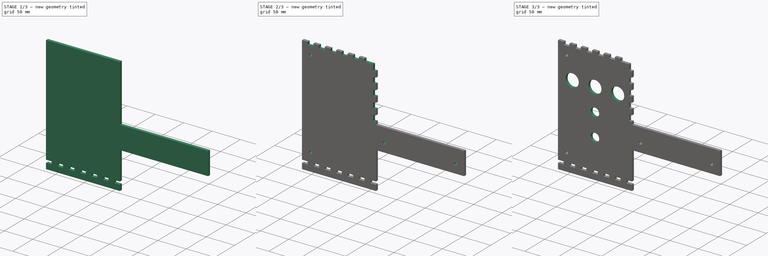
[diagram: build sequence overview — one tinted view per stage of 3, left to right]
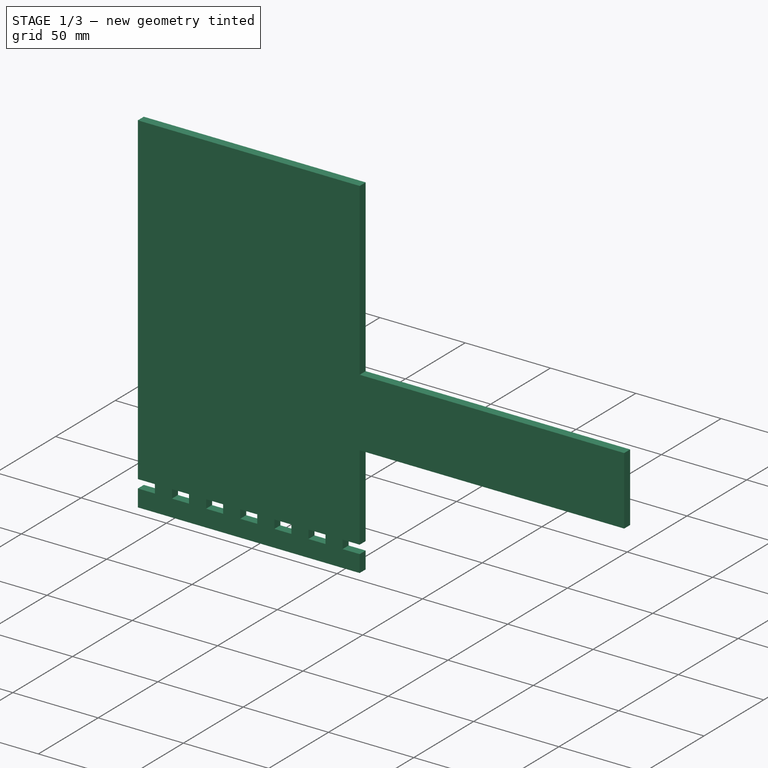
[diagram: stage 1 of 3 — iso view after this stage's code; geometry added in this stage tinted green]
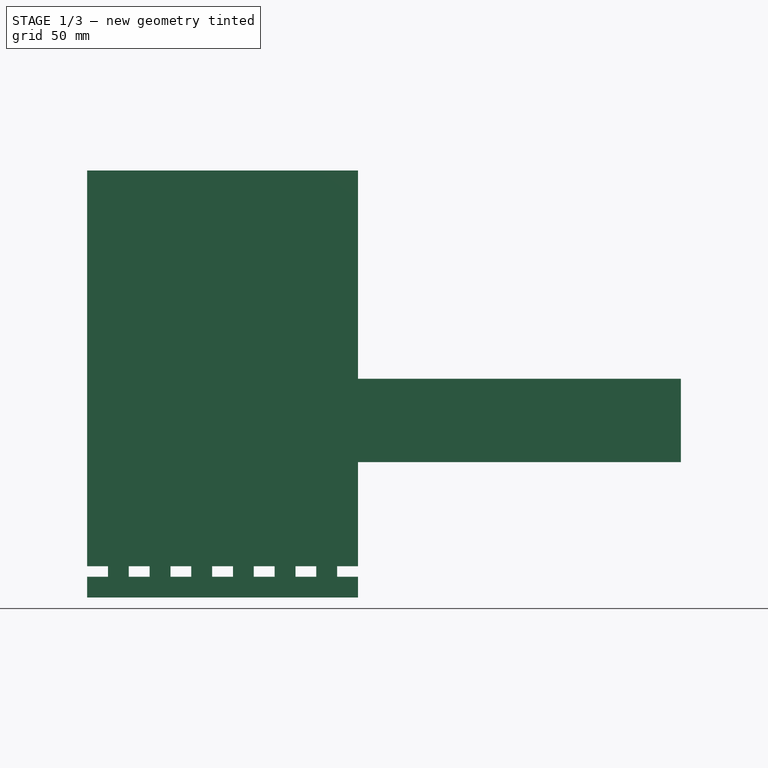
[diagram: stage 1 of 3 — front view after this stage's code; geometry added in this stage tinted green]
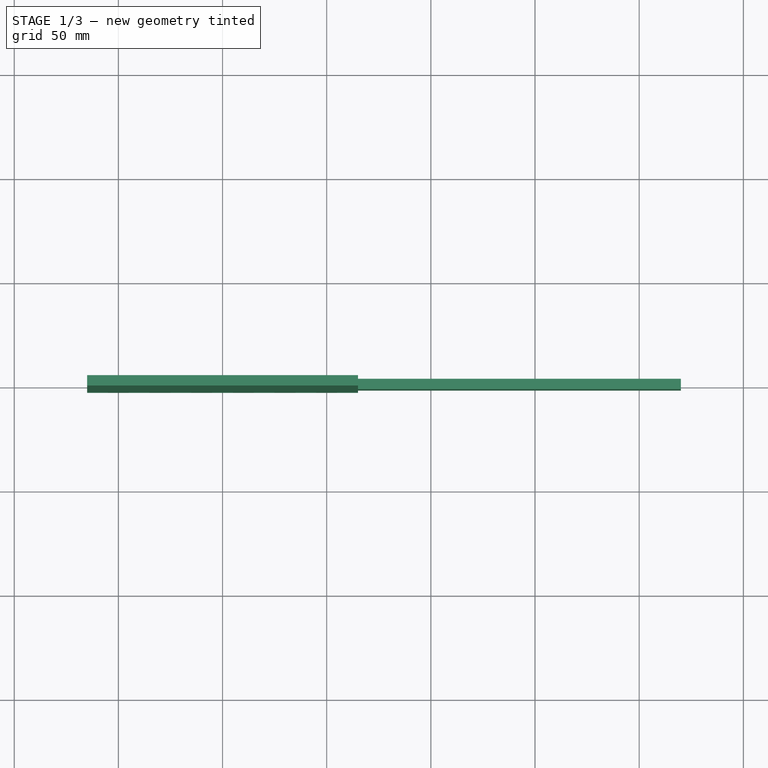
[diagram: stage 1 of 3 — top view after this stage's code; geometry added in this stage tinted green]
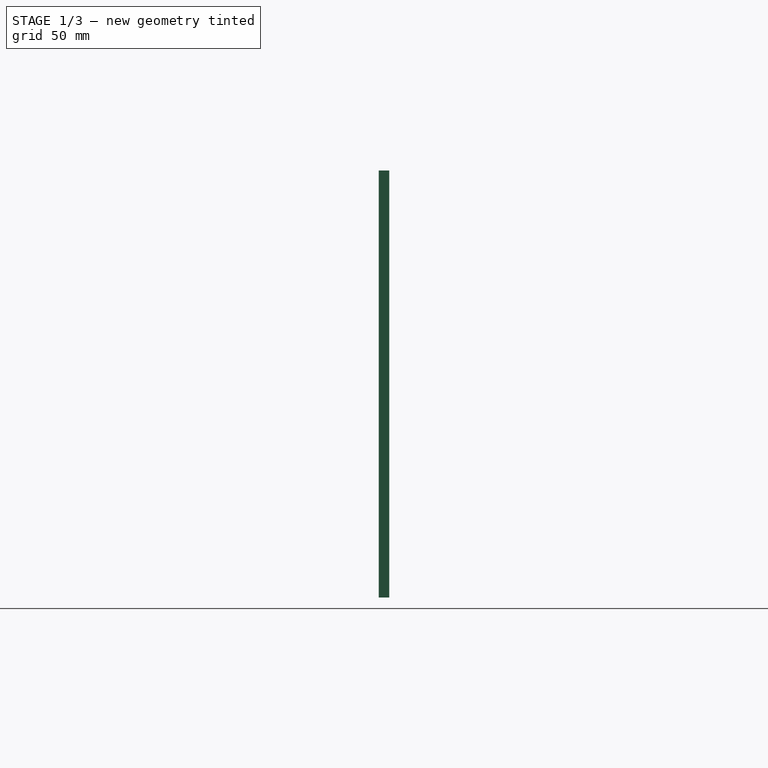
[diagram: stage 1 of 3 — right view after this stage's code; geometry added in this stage tinted green]
FCSTD DOCUMENT  (FreeCAD 0.19R24267 +148 (Git))
Label: FrontPlate
License: All rights reserved
LicenseURL: http://en.wikipedia.org/wiki/All_rights_reserved
objects: Sketcher::SketchObject×7, PartDesign::Pocket×6, PartDesign::Pad×1, PartDesign::Body×1
note: 22 computed .brp shape members not serialized (recipe doc carries the construction recipe); baked Part::Feature solids carry a one-line shape summary decoded from their .brp

FEATURE [Sketcher::SketchObject] Sketch
  FullyConstrained = true
  MapMode = 5
  Placement = pos=(0,0,0) rot=(1,0,0;1.5708rad)
  Support = -> [XZ_Plane]
  sketch-geometry (8):
    g0: LineSegment StartX=-65 StartY=102.5 StartZ=0 EndX=65 EndY=102.5 EndZ=0
    g1: LineSegment StartX=65 StartY=102.5 StartZ=0 EndX=65 EndY=2.5 EndZ=0
    g2: LineSegment StartX=65 StartY=-102.5 StartZ=0 EndX=-65 EndY=-102.5 EndZ=0
    g3: LineSegment StartX=-65 StartY=-102.5 StartZ=0 EndX=-65 EndY=102.5 EndZ=0
    g4: LineSegment StartX=65 StartY=2.5 StartZ=0 EndX=220 EndY=2.5 EndZ=0
    g5: LineSegment StartX=220 StartY=2.5 StartZ=0 EndX=220 EndY=-37.5 EndZ=0
    g6: LineSegment StartX=220 StartY=-37.5 StartZ=0 EndX=65 EndY=-37.5 EndZ=0
    g7: LineSegment StartX=65 StartY=-37.5 StartZ=0 EndX=65 EndY=-102.5 EndZ=0
  constraints (21):
    c: Coincident(g0,g1)
    c: Coincident(g7,g2)
    c: Coincident(g2,g3)
    c: Coincident(g3,g0)
    c: Horizontal(g2)
    c: Vertical(g3)
    c: Symmetric(g0,g0,g-2)
    c: Symmetric(g7,g0,g-1)
    c: Distance(g3) = 205
    c: Horizontal(g4)
    c: Coincident(g4,g5)
    c: Vertical(g5)
    c: Coincident(g5,g6)
    c: Horizontal(g6)
    c: Coincident(g1,g4)
    c: Coincident(g7,g6)
    c: Tangent(g1,g7)
    c: Distance(g0) = 130
    c: DistanceX(g0,g4) = 285
    c: DistanceY(g2,g5) = 65
    c: Distance(g5) = 40
FEATURE [PartDesign::Pad] Pad
  Direction = (1,1,1)
  Length = 5
  Length2 = 100
  Midplane = true
  Placement = pos=(0,0,0) rot=(1,0,0;1.5708rad)
  Profile = -> Sketch
  Refine = true
  Type = 0
FEATURE [Sketcher::SketchObject] Sketch001
  ExternalGeometry = -> [Pad]
  FullyConstrained = true
  MapMode = 5
  Placement = pos=(0,-2.5,-6e-16) rot=(1,0,0;1.5708rad)
  Support = -> [Pad]
  sketch-geometry (34):
    g0: LineSegment StartX=-65 StartY=-92.5 StartZ=0 EndX=-55 EndY=-92.5 EndZ=0
    g1: LineSegment StartX=-55 StartY=-92.5 StartZ=0 EndX=-55 EndY=-87.5 EndZ=0
    g2: LineSegment StartX=-55 StartY=-87.5 StartZ=0 EndX=-65 EndY=-87.5 EndZ=0
    g3: LineSegment StartX=-65 StartY=-87.5 StartZ=0 EndX=-65 EndY=-92.5 EndZ=0
    g4: LineSegment StartX=-45 StartY=-92.5 StartZ=0 EndX=-35 EndY=-92.5 EndZ=0
    g5: LineSegment StartX=-35 StartY=-92.5 StartZ=0 EndX=-35 EndY=-87.5 EndZ=0
    g6: LineSegment StartX=-35 StartY=-87.5 StartZ=0 EndX=-45 EndY=-87.5 EndZ=0
    g7: LineSegment StartX=-45 StartY=-87.5 StartZ=0 EndX=-45 EndY=-92.5 EndZ=0
    g8: LineSegment StartX=-65 StartY=-92.5 StartZ=0 EndX=-45 EndY=-92.5 EndZ=0
    g9: LineSegment StartX=-25 StartY=-92.5 StartZ=0 EndX=-15 EndY=-92.5 EndZ=0
    g10: LineSegment StartX=-15 StartY=-92.5 StartZ=0 EndX=-15 EndY=-87.5 EndZ=0
    g11: LineSegment StartX=-15 StartY=-87.5 StartZ=0 EndX=-25 EndY=-87.5 EndZ=0
    g12: LineSegment StartX=-25 StartY=-87.5 StartZ=0 EndX=-25 EndY=-92.5 EndZ=0
    g13: LineSegment StartX=-45 StartY=-92.5 StartZ=0 EndX=-25 EndY=-92.5 EndZ=0
    g14: LineSegment StartX=-5 StartY=-92.5 StartZ=0 EndX=5 EndY=-92.5 EndZ=0
    g15: LineSegment StartX=5 StartY=-92.5 StartZ=0 EndX=5 EndY=-87.5 EndZ=0
    g16: LineSegment StartX=5 StartY=-87.5 StartZ=0 EndX=-5 EndY=-87.5 EndZ=0
    g17: LineSegment StartX=-5 StartY=-87.5 StartZ=0 EndX=-5 EndY=-92.5 EndZ=0
    g18: LineSegment StartX=-25 StartY=-92.5 StartZ=0 EndX=-5 EndY=-92.5 EndZ=0
    g19: LineSegment StartX=15 StartY=-92.5 StartZ=0 EndX=25 EndY=-92.5 EndZ=0
    g20: LineSegment StartX=25 StartY=-92.5 StartZ=0 EndX=25 EndY=-87.5 EndZ=0
    g21: LineSegment StartX=25 StartY=-87.5 StartZ=0 EndX=15 EndY=-87.5 EndZ=0
    g22: LineSegment StartX=15 StartY=-87.5 StartZ=0 EndX=15 EndY=-92.5 EndZ=0
    g23: LineSegment StartX=-5 StartY=-92.5 StartZ=0 EndX=15 EndY=-92.5 EndZ=0
    g24: LineSegment StartX=35 StartY=-92.5 StartZ=0 EndX=45 EndY=-92.5 EndZ=0
    g25: LineSegment StartX=45 StartY=-92.5 StartZ=0 EndX=45 EndY=-87.5 EndZ=0
    g26: LineSegment StartX=45 StartY=-87.5 StartZ=0 EndX=35 EndY=-87.5 EndZ=0
    g27: LineSegment StartX=35 StartY=-87.5 StartZ=0 EndX=35 EndY=-92.5 EndZ=0
    g28: LineSegment StartX=15 StartY=-92.5 StartZ=0 EndX=35 EndY=-92.5 EndZ=0
    g29: LineSegment StartX=55 StartY=-92.5 StartZ=0 EndX=65 EndY=-92.5 EndZ=0
    g30: LineSegment StartX=65 StartY=-92.5 StartZ=0 EndX=65 EndY=-87.5 EndZ=0
    g31: LineSegment StartX=65 StartY=-87.5 StartZ=0 EndX=55 EndY=-87.5 EndZ=0
    g32: LineSegment StartX=55 StartY=-87.5 StartZ=0 EndX=55 EndY=-92.5 EndZ=0
    g33: LineSegment StartX=35 StartY=-92.5 StartZ=0 EndX=55 EndY=-92.5 EndZ=0
  constraints (96):
    c: Coincident(g0,g1)
    c: Coincident(g1,g2)
    c: Coincident(g2,g3)
    c: Coincident(g3,g0)
    c: Horizontal(g0)
    c: Horizontal(g2)
    c: Vertical(g1)
    c: Vertical(g3)
    c: PointOnObject(g0,g-3)
    c: Distance(g1) = 5
    c: Distance(g2) = 10
    c: DistanceY(g-3,g0) = 10
    c: Coincident(g4,g5)
    c: Coincident(g5,g6)
    c: Coincident(g6,g7)
    c: Coincident(g7,g4)
    c: Horizontal(g4)
    c: Horizontal(g6)
    c: Vertical(g5)
    c: Vertical(g7)
    c: Equal(g1,g5) = 5
    c: Equal(g2,g6) = 10
    c: Coincident(g0,g8)
    c: Coincident(g4,g8)
    c: Distance(g8) = 20
    c: Coincident(g9,g10)
    c: Coincident(g10,g11)
    c: Coincident(g11,g12)
    c: Coincident(g12,g9)
    c: Horizontal(g9)
    c: Horizontal(g11)
    c: Vertical(g10)
    c: Vertical(g12)
    c: Equal(g1,g10) = 5
    c: Equal(g2,g11) = 10
    c: Coincident(g4,g13)
    c: Coincident(g9,g13)
    c: Equal(g8,g13)
    c: Parallel(g13,g8)
    c: Coincident(g14,g15)
    c: Coincident(g15,g16)
    c: Coincident(g16,g17)
    c: Coincident(g17,g14)
    c: Horizontal(g14)
    c: Horizontal(g16)
    c: Vertical(g15)
    c: Vertical(g17)
    c: Equal(g1,g15) = 5
    c: Equal(g2,g16) = 10
    c: Coincident(g9,g18)
    c: Coincident(g14,g18)
    c: Equal(g8,g18)
    c: Parallel(g18,g8)
    c: Coincident(g19,g20)
    c: Coincident(g20,g21)
    c: Coincident(g21,g22)
    c: Coincident(g22,g19)
    c: Horizontal(g19)
    c: Horizontal(g21)
    c: Vertical(g20)
    c: Vertical(g22)
    c: Equal(g1,g20) = 5
    c: Equal(g2,g21) = 10
    c: Coincident(g14,g23)
    c: Coincident(g19,g23)
    c: Equal(g8,g23)
    c: Parallel(g23,g8)
    c: Coincident(g24,g25)
    c: Coincident(g25,g26)
    c: Coincident(g26,g27)
    c: Coincident(g27,g24)
    c: Horizontal(g24)
    c: Horizontal(g26)
    c: Vertical(g25)
    c: Vertical(g27)
    c: Equal(g1,g25) = 5
    c: Equal(g2,g26) = 10
    c: Coincident(g19,g28)
    c: Coincident(g24,g28)
    c: Equal(g8,g28)
    c: Parallel(g28,g8)
    c: Coincident(g29,g30)
    c: Coincident(g30,g31)
    c: Coincident(g31,g32)
    c: Coincident(g32,g29)
    c: Horizontal(g29)
    c: Horizontal(g31)
    c: Vertical(g30)
    c: Vertical(g32)
    c: Equal(g1,g30) = 5
    c: Equal(g2,g31) = 10
    c: Coincident(g24,g33)
    c: Coincident(g29,g33)
    c: Equal(g8,g33)
    c: Parallel(g33,g8)
    c: Horizontal(g8)
FEATURE [PartDesign::Pocket] Pocket  label="BottomCrenel"
  BaseFeature = -> Pad
  Length = 5
  Length2 = 100
  Placement = pos=(0,0,0) rot=(1,0,0;1.5708rad)
  Profile = -> Sketch001
  Refine = true
  Type = 1
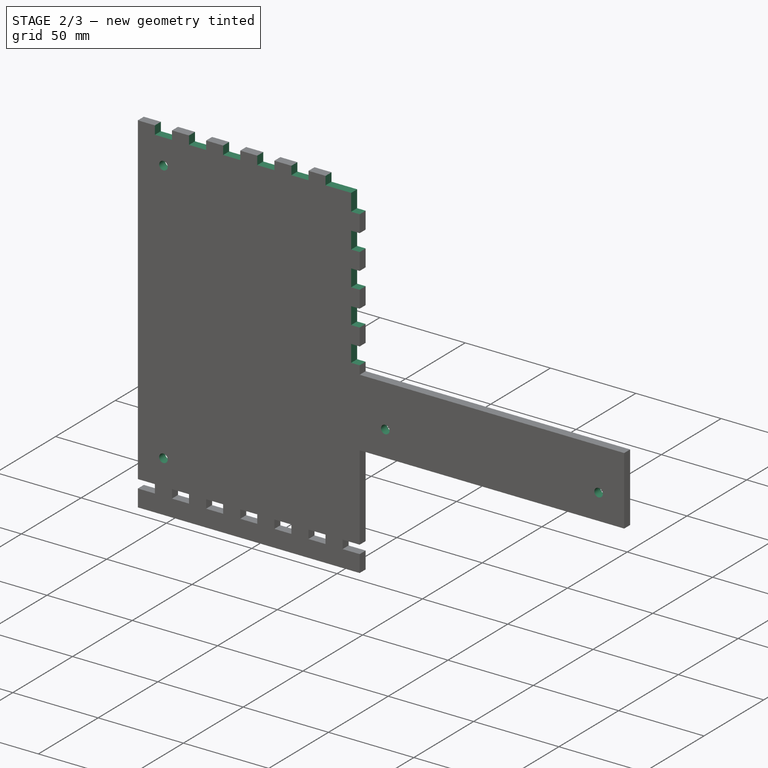
[diagram: stage 2 of 3 — iso view after this stage's code; geometry added in this stage tinted green]
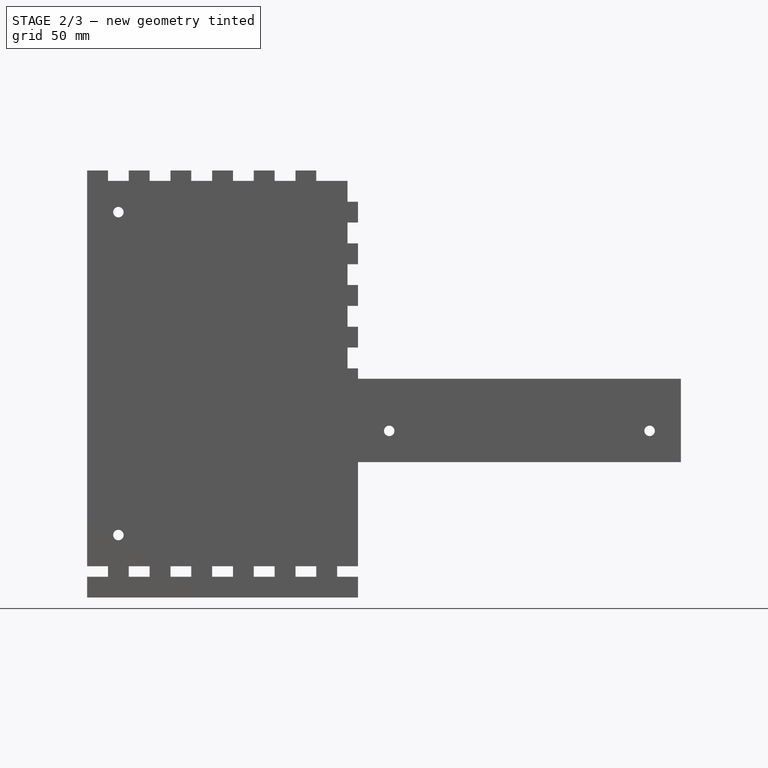
[diagram: stage 2 of 3 — front view after this stage's code; geometry added in this stage tinted green]
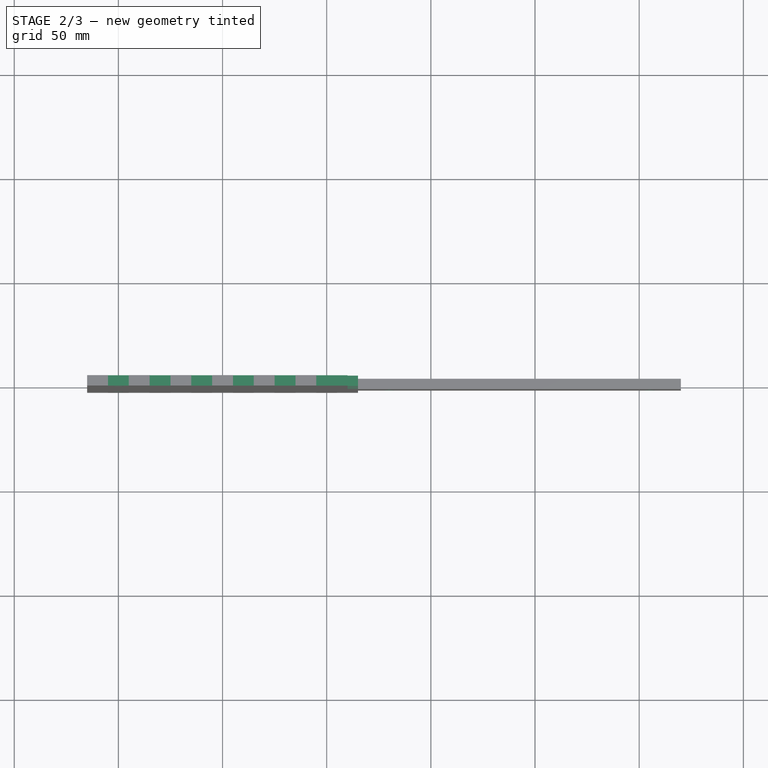
[diagram: stage 2 of 3 — top view after this stage's code; geometry added in this stage tinted green]
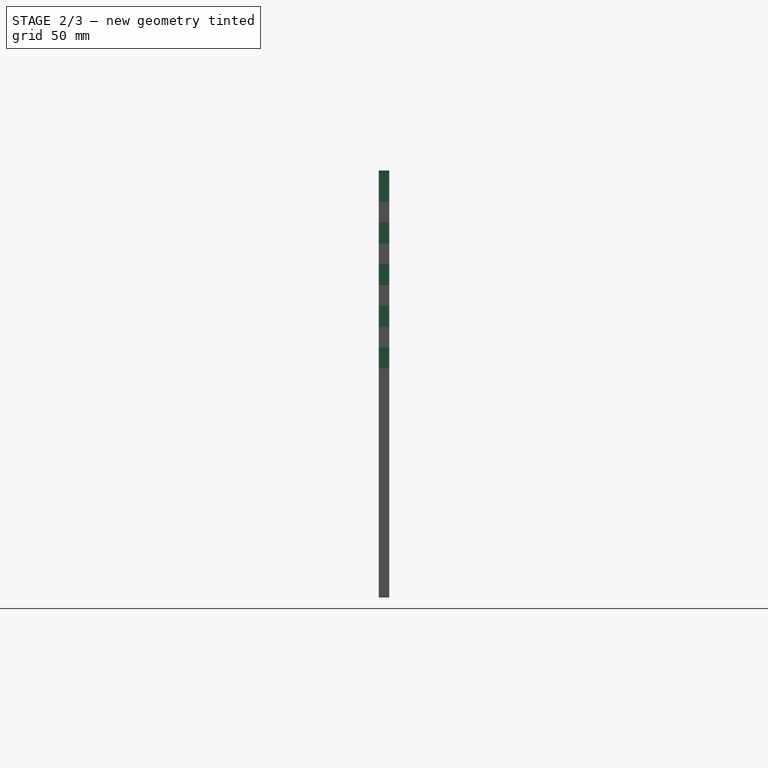
[diagram: stage 2 of 3 — right view after this stage's code; geometry added in this stage tinted green]
FEATURE [Sketcher::SketchObject] Sketch002
  ExternalGeometry = -> [Pocket]
  FullyConstrained = true
  MapMode = 5
  Placement = pos=(0,-2.5,-6e-16) rot=(1,0,0;1.5708rad)
  Support = -> [Pocket]
  sketch-geometry (4):
    g0: Circle CenterX=-50 CenterY=82.5 CenterZ=0 NormalX=0 NormalY=0 NormalZ=1 AngleXU=0 Radius=2.5
    g1: Circle CenterX=-50 CenterY=-72.5 CenterZ=0 NormalX=0 NormalY=0 NormalZ=1 AngleXU=0 Radius=2.5
    g2: Circle CenterX=80 CenterY=-22.5 CenterZ=0 NormalX=0 NormalY=0 NormalZ=1 AngleXU=0 Radius=2.5
    g3: Circle CenterX=205 CenterY=-22.5 CenterZ=0 NormalX=0 NormalY=0 NormalZ=1 AngleXU=0 Radius=2.5
  constraints (12):
    c: Vertical(g1,g0)
    c: Diameter(g1) = 5
    c: DistanceY(g-4,g1) = 15
    c: DistanceX(g-3,g0) = 15
    c: DistanceY(g0,g-3) = 20
    c: Horizontal(g2,g3)
    c: Equal(g0,g1)
    c: Equal(g1,g2)
    c: Equal(g2,g3)
    c: DistanceX(g-5,g2) = 15
    c: DistanceX(g3,g-6) = 15
    c: DistanceY(g-6,g3) = 15
FEATURE [PartDesign::Pocket] Pocket001  label="HolesForTry_Square"
  BaseFeature = -> Pocket
  Length = 5
  Length2 = 100
  Placement = pos=(0,0,0) rot=(1,0,0;1.5708rad)
  Profile = -> Sketch002
  Refine = true
  Type = 1
FEATURE [Sketcher::SketchObject] Sketch003
  ExternalGeometry = -> [Pocket001]
  FullyConstrained = true
  MapMode = 5
  Placement = pos=(0,-2.5,-6e-16) rot=(1,0,0;1.5708rad)
  Support = -> [Pocket001]
  sketch-geometry (29):
    g0: LineSegment StartX=-55 StartY=97.5 StartZ=0 EndX=-45 EndY=97.5 EndZ=0
    g1: LineSegment StartX=-45 StartY=97.5 StartZ=0 EndX=-45 EndY=102.5 EndZ=0
    g2: LineSegment StartX=-45 StartY=102.5 StartZ=0 EndX=-55 EndY=102.5 EndZ=0
    g3: LineSegment StartX=-55 StartY=102.5 StartZ=0 EndX=-55 EndY=97.5 EndZ=0
    g4: LineSegment StartX=-35 StartY=97.5 StartZ=0 EndX=-25 EndY=97.5 EndZ=0
    g5: LineSegment StartX=-25 StartY=97.5 StartZ=0 EndX=-25 EndY=102.5 EndZ=0
    g6: LineSegment StartX=-25 StartY=102.5 StartZ=0 EndX=-35 EndY=102.5 EndZ=0
    g7: LineSegment StartX=-35 StartY=102.5 StartZ=0 EndX=-35 EndY=97.5 EndZ=0
    g8: LineSegment StartX=-55 StartY=97.5 StartZ=0 EndX=-35 EndY=97.5 EndZ=0
    g9: LineSegment StartX=-15 StartY=97.5 StartZ=0 EndX=-5 EndY=97.5 EndZ=0
    g10: LineSegment StartX=-5 StartY=97.5 StartZ=0 EndX=-5 EndY=102.5 EndZ=0
    g11: LineSegment StartX=-5 StartY=102.5 StartZ=0 EndX=-15 EndY=102.5 EndZ=0
    g12: LineSegment StartX=-15 StartY=102.5 StartZ=0 EndX=-15 EndY=97.5 EndZ=0
    g13: LineSegment StartX=-35 StartY=97.5 StartZ=0 EndX=-15 EndY=97.5 EndZ=0
    g14: LineSegment StartX=5 StartY=97.5 StartZ=0 EndX=15 EndY=97.5 EndZ=0
    g15: LineSegment StartX=15 StartY=97.5 StartZ=0 EndX=15 EndY=102.5 EndZ=0
    g16: LineSegment StartX=15 StartY=102.5 StartZ=0 EndX=5 EndY=102.5 EndZ=0
    g17: LineSegment StartX=5 StartY=102.5 StartZ=0 EndX=5 EndY=97.5 EndZ=0
    g18: LineSegment StartX=-15 StartY=97.5 StartZ=0 EndX=5 EndY=97.5 EndZ=0
    g19: LineSegment StartX=25 StartY=97.5 StartZ=0 EndX=35 EndY=97.5 EndZ=0
    g20: LineSegment StartX=35 StartY=97.5 StartZ=0 EndX=35 EndY=102.5 EndZ=0
    g21: LineSegment StartX=35 StartY=102.5 StartZ=0 EndX=25 EndY=102.5 EndZ=0
    g22: LineSegment StartX=25 StartY=102.5 StartZ=0 EndX=25 EndY=97.5 EndZ=0
    g23: LineSegment StartX=5 StartY=97.5 StartZ=0 EndX=25 EndY=97.5 EndZ=0
    g24: LineSegment StartX=45 StartY=102.5 StartZ=0 EndX=45 EndY=97.5 EndZ=0
    g25: LineSegment StartX=25 StartY=97.5 StartZ=0 EndX=45 EndY=97.5 EndZ=0
    g26: LineSegment StartX=45 StartY=97.5 StartZ=0 EndX=65 EndY=97.5 EndZ=0
    g27: LineSegment StartX=65 StartY=102.5 StartZ=0 EndX=65 EndY=97.5 EndZ=0
    g28: LineSegment StartX=45 StartY=102.5 StartZ=0 EndX=65 EndY=102.5 EndZ=0
  constraints (81):
    c: Coincident(g0,g1)
    c: Coincident(g1,g2)
    c: Coincident(g2,g3)
    c: Coincident(g3,g0)
    c: Horizontal(g0)
    c: Horizontal(g2)
    c: Vertical(g1)
    c: Vertical(g3)
    c: Distance(g0) = 10
    c: Distance(g1) = 5
    c: PointOnObject(g2,g-3)
    c: Distance(g2,g-3) = 10
    c: Coincident(g4,g5)
    c: Coincident(g5,g6)
    c: Coincident(g6,g7)
    c: Coincident(g7,g4)
    c: Horizontal(g4)
    c: Horizontal(g6)
    c: Vertical(g5)
    c: Vertical(g7)
    c: Equal(g0,g4) = 10
    c: Equal(g1,g5) = 5
    c: Coincident(g0,g8)
    c: Coincident(g4,g8)
    c: Distance(g8) = 20
    c: Coincident(g9,g10)
    c: Coincident(g10,g11)
    c: Coincident(g11,g12)
    c: Coincident(g12,g9)
    c: Horizontal(g9)
    c: Horizontal(g11)
    c: Vertical(g10)
    c: Vertical(g12)
    c: Equal(g0,g9) = 10
    c: Equal(g1,g10) = 5
    c: Coincident(g4,g13)
    c: Coincident(g9,g13)
    c: Equal(g8,g13)
    c: Parallel(g13,g8)
    c: Coincident(g14,g15)
    c: Coincident(g15,g16)
    c: Coincident(g16,g17)
    c: Coincident(g17,g14)
    c: Horizontal(g14)
    c: Horizontal(g16)
    c: Vertical(g15)
    c: Vertical(g17)
    c: Equal(g0,g14) = 10
    c: Equal(g1,g15) = 5
    c: Coincident(g9,g18)
    c: Coincident(g14,g18)
    c: Equal(g8,g18)
    c: Parallel(g18,g8)
    c: Coincident(g19,g20)
    c: Coincident(g20,g21)
    c: Coincident(g21,g22)
    c: Coincident(g22,g19)
    c: Horizontal(g19)
    c: Horizontal(g21)
    c: Vertical(g20)
    c: Vertical(g22)
    c: Equal(g0,g19) = 10
    c: Equal(g1,g20) = 5
    c: Coincident(g14,g23)
    c: Coincident(g19,g23)
    c: Equal(g8,g23)
    c: Parallel(g23,g8)
    c: Vertical(g24)
    c: Coincident(g19,g25)
    c: Equal(g8,g25)
    c: Parallel(g25,g8)
    c: Horizontal(g8)
    c: Coincident(g26,g24)
    c: Horizontal(g26)
    c: Coincident(g27,g-3)
    c: Coincident(g27,g26)
    c: Vertical(g27)
    c: Coincident(g28,g24)
    c: Coincident(g28,g27)
    c: Horizontal(g28)
    c: Coincident(g24,g25)
FEATURE [PartDesign::Pocket] Pocket002  label="UpperCrenel"
  BaseFeature = -> Pocket001
  Length = 5
  Length2 = 100
  Placement = pos=(0,0,0) rot=(1,0,0;1.5708rad)
  Profile = -> Sketch003
  Refine = true
  Type = 1
FEATURE [Sketcher::SketchObject] Sketch004
  ExternalGeometry = -> [Pocket002]
  FullyConstrained = true
  MapMode = 5
  Placement = pos=(0,-2.5,-6e-16) rot=(1,0,0;1.5708rad)
  Support = -> [Pocket002]
  sketch-geometry (24):
    g0: LineSegment StartX=60 StartY=87.5 StartZ=0 EndX=65 EndY=87.5 EndZ=0
    g1: LineSegment StartX=65 StartY=87.5 StartZ=0 EndX=65 EndY=97.5 EndZ=0
    g2: LineSegment StartX=65 StartY=97.5 StartZ=0 EndX=60 EndY=97.5 EndZ=0
    g3: LineSegment StartX=60 StartY=97.5 StartZ=0 EndX=60 EndY=87.5 EndZ=0
    g4: LineSegment StartX=60 StartY=67.5 StartZ=0 EndX=65 EndY=67.5 EndZ=0
    g5: LineSegment StartX=65 StartY=67.5 StartZ=0 EndX=65 EndY=77.5 EndZ=0
    g6: LineSegment StartX=65 StartY=77.5 StartZ=0 EndX=60 EndY=77.5 EndZ=0
    g7: LineSegment StartX=60 StartY=77.5 StartZ=0 EndX=60 EndY=67.5 EndZ=0
    g8: LineSegment StartX=60 StartY=87.5 StartZ=0 EndX=60 EndY=67.5 EndZ=0
    g9: LineSegment StartX=60 StartY=47.5 StartZ=0 EndX=65 EndY=47.5 EndZ=0
    g10: LineSegment StartX=65 StartY=47.5 StartZ=0 EndX=65 EndY=57.5 EndZ=0
    g11: LineSegment StartX=65 StartY=57.5 StartZ=0 EndX=60 EndY=57.5 EndZ=0
    g12: LineSegment StartX=60 StartY=57.5 StartZ=0 EndX=60 EndY=47.5 EndZ=0
    g13: LineSegment StartX=60 StartY=67.5 StartZ=0 EndX=60 EndY=47.5 EndZ=0
    g14: LineSegment StartX=60 StartY=27.5 StartZ=0 EndX=65 EndY=27.5 EndZ=0
    g15: LineSegment StartX=65 StartY=27.5 StartZ=0 EndX=65 EndY=37.5 EndZ=0
    g16: LineSegment StartX=65 StartY=37.5 StartZ=0 EndX=60 EndY=37.5 EndZ=0
    g17: LineSegment StartX=60 StartY=37.5 StartZ=0 EndX=60 EndY=27.5 EndZ=0
    g18: LineSegment StartX=60 StartY=47.5 StartZ=0 EndX=60 EndY=27.5 EndZ=0
    g19: LineSegment StartX=60 StartY=7.5 StartZ=0 EndX=65 EndY=7.5 EndZ=0
    g20: LineSegment StartX=65 StartY=7.5 StartZ=0 EndX=65 EndY=17.5 EndZ=0
    g21: LineSegment StartX=65 StartY=17.5 StartZ=0 EndX=60 EndY=17.5 EndZ=0
    g22: LineSegment StartX=60 StartY=17.5 StartZ=0 EndX=60 EndY=7.5 EndZ=0
    g23: LineSegment StartX=60 StartY=27.5 StartZ=0 EndX=60 EndY=7.5 EndZ=0
  constraints (67):
    c: Coincident(g0,g1)
    c: Coincident(g1,g2)
    c: Coincident(g2,g3)
    c: Coincident(g3,g0)
    c: Horizontal(g0)
    c: Horizontal(g2)
    c: Vertical(g1)
    c: Vertical(g3)
    c: Coincident(g1,g-3)
    c: Distance(g1) = 10
    c: Distance(g2) = 5
    c: Coincident(g4,g5)
    c: Coincident(g5,g6)
    c: Coincident(g6,g7)
    c: Coincident(g7,g4)
    c: Horizontal(g4)
    c: Horizontal(g6)
    c: Vertical(g5)
    c: Vertical(g7)
    c: Equal(g1,g5) = 10
    c: Equal(g2,g6) = 5
    c: Coincident(g0,g8)
    c: Coincident(g4,g8)
    c: Distance(g8) = 20
    c: Coincident(g9,g10)
    c: Coincident(g10,g11)
    c: Coincident(g11,g12)
    c: Coincident(g12,g9)
    c: Horizontal(g9)
    c: Horizontal(g11)
    c: Vertical(g10)
    c: Vertical(g12)
    c: Equal(g1,g10) = 10
    c: Equal(g2,g11) = 5
    c: Coincident(g4,g13)
    c: Coincident(g9,g13)
    c: Equal(g8,g13)
    c: Parallel(g13,g8)
    c: Coincident(g14,g15)
    c: Coincident(g15,g16)
    c: Coincident(g16,g17)
    c: Coincident(g17,g14)
    c: Horizontal(g14)
    c: Horizontal(g16)
    c: Vertical(g15)
    c: Vertical(g17)
    c: Equal(g1,g15) = 10
    c: Equal(g2,g16) = 5
    c: Coincident(g9,g18)
    c: Coincident(g14,g18)
    c: Equal(g8,g18)
    c: Parallel(g18,g8)
    c: Coincident(g19,g20)
    c: Coincident(g20,g21)
    c: Coincident(g21,g22)
    c: Coincident(g22,g19)
    c: Horizontal(g19)
    c: Horizontal(g21)
    c: Vertical(g20)
    c: Vertical(g22)
    c: Equal(g1,g20) = 10
    c: Equal(g2,g21) = 5
    c: Coincident(g14,g23)
    c: Coincident(g19,g23)
    c: Equal(g8,g23)
    c: Parallel(g23,g8)
    c: Vertical(g8)
FEATURE [PartDesign::Pocket] Pocket003  label="InnerCrenel"
  BaseFeature = -> Pocket002
  Length = 5
  Length2 = 100
  Placement = pos=(0,0,0) rot=(1,0,0;1.5708rad)
  Profile = -> Sketch004
  Refine = true
  Type = 1
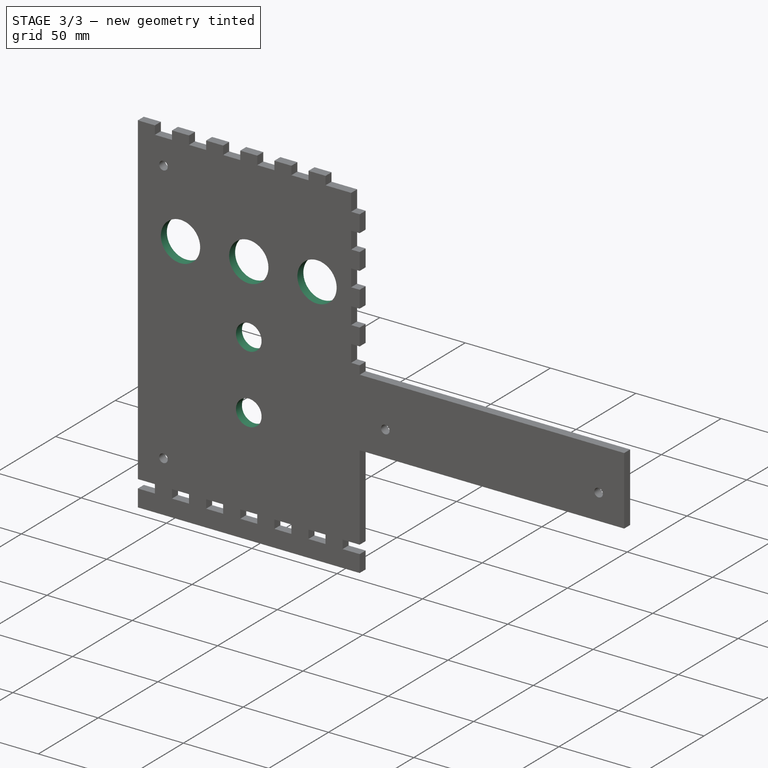
[diagram: stage 3 of 3 — iso view after this stage's code; geometry added in this stage tinted green]
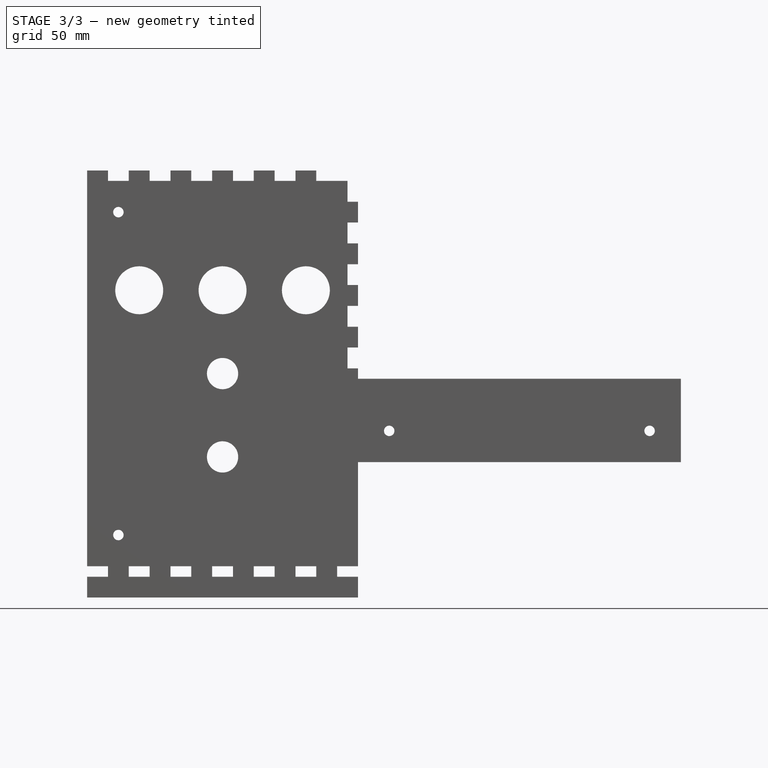
[diagram: stage 3 of 3 — front view after this stage's code; geometry added in this stage tinted green]
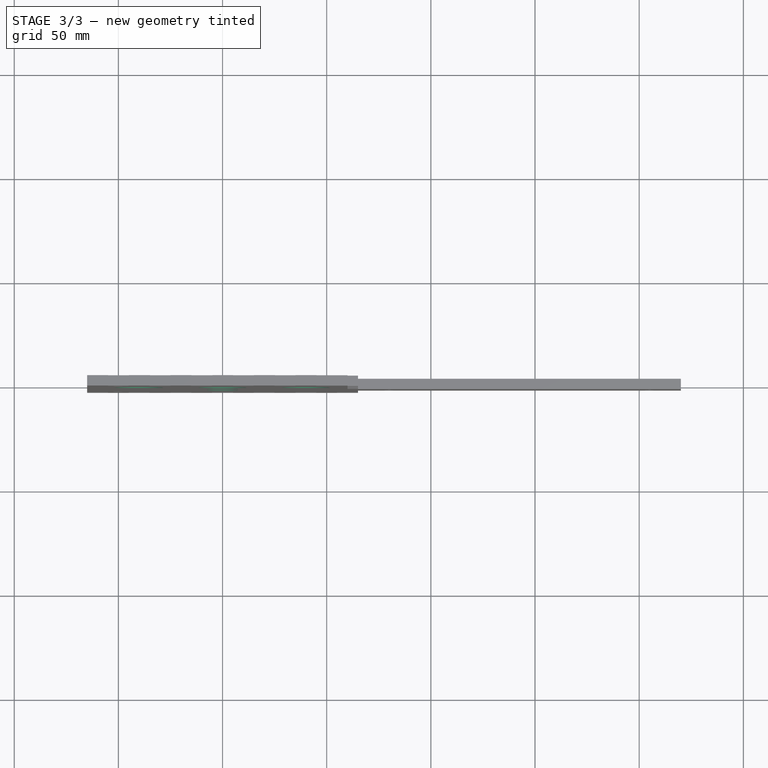
[diagram: stage 3 of 3 — top view after this stage's code; geometry added in this stage tinted green]
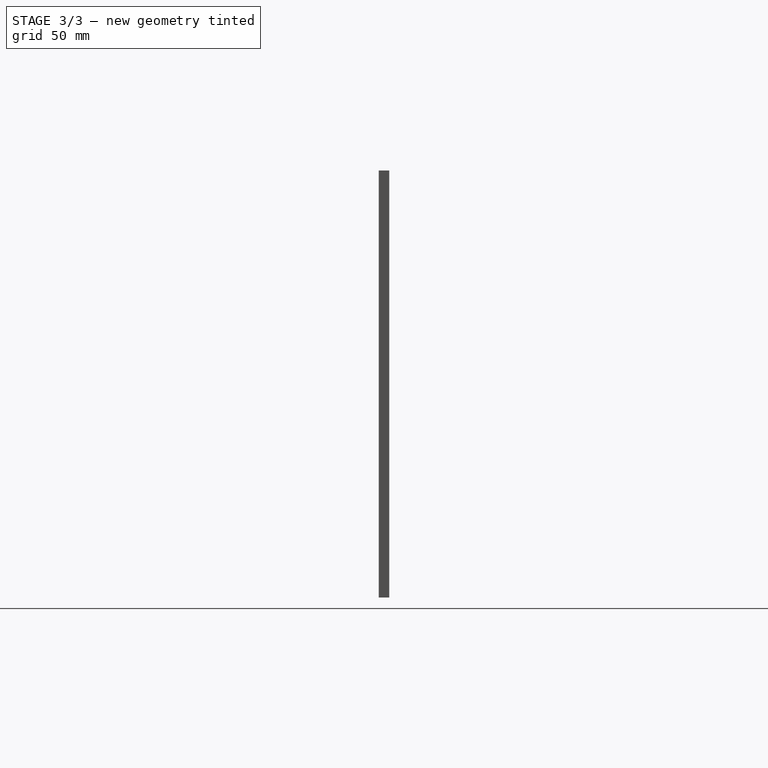
[diagram: stage 3 of 3 — right view after this stage's code; geometry added in this stage tinted green]
FEATURE [Sketcher::SketchObject] Sketch005
  FullyConstrained = true
  MapMode = 5
  Placement = pos=(0,-2.5,-6e-16) rot=(1,0,0;1.5708rad)
  Support = -> [Pocket003]
  sketch-geometry (3):
    g0: Circle CenterX=-40 CenterY=45 CenterZ=0 NormalX=0 NormalY=0 NormalZ=1 AngleXU=0 Radius=11.5
    g1: Circle CenterX=0 CenterY=45 CenterZ=0 NormalX=0 NormalY=0 NormalZ=1 AngleXU=0 Radius=11.5
    g2: Circle CenterX=40 CenterY=45 CenterZ=0 NormalX=0 NormalY=0 NormalZ=1 AngleXU=0 Radius=11.5
  constraints (8):
    c: PointOnObject(g1,g-2)
    c: Equal(g2,g1)
    c: Equal(g1,g0)
    c: Horizontal(g2,g1)
    c: Symmetric(g2,g0,g1)
    c: Diameter(g0) = 23  'Button_Diameter'
    c: Distance(g0,g1) = 40
    c: DistanceY(g-1,g1) = 45
FEATURE [PartDesign::Pocket] Pocket004  label="HolesForPushButtons"
  BaseFeature = -> Pocket003
  Length = 5
  Length2 = 100
  Placement = pos=(0,0,0) rot=(1,0,0;1.5708rad)
  Profile = -> Sketch005
  Refine = true
  Type = 1
FEATURE [Sketcher::SketchObject] Sketch006
  FullyConstrained = true
  MapMode = 5
  Placement = pos=(0,-2.5,-6e-16) rot=(1,0,0;1.5708rad)
  Support = -> [Pocket004]
  sketch-geometry (2):
    g0: Circle CenterX=0 CenterY=5 CenterZ=0 NormalX=0 NormalY=0 NormalZ=1 AngleXU=0 Radius=7.5
    g1: Circle CenterX=0 CenterY=-35 CenterZ=0 NormalX=0 NormalY=0 NormalZ=1 AngleXU=0 Radius=7.5
  constraints (6):
    c: PointOnObject(g0,g-2)
    c: PointOnObject(g1,g-2)
    c: Equal(g1,g0)
    c: Diameter(g1) = 15
    c: DistanceY(g1,g0) = 40
    c: DistanceY(g-1,g0) = 5
FEATURE [PartDesign::Pocket] Pocket005  label="HolesForRotary_Encoder"
  BaseFeature = -> Pocket004
  Length = 5
  Length2 = 100
  Placement = pos=(0,0,0) rot=(1,0,0;1.5708rad)
  Profile = -> Sketch006
  Refine = true
  Type = 1
FEATURE [PartDesign::Body] Body
  Group = -> [Sketch,Pad,Sketch001,Pocket,Sketch002,Pocket001,Sketch003,Pocket002,Sketch004,Pocket003,Sketch005,Pocket004,Sketch006,Pocket005]
  Origin = -> Origin
  Tip = -> Pocket005
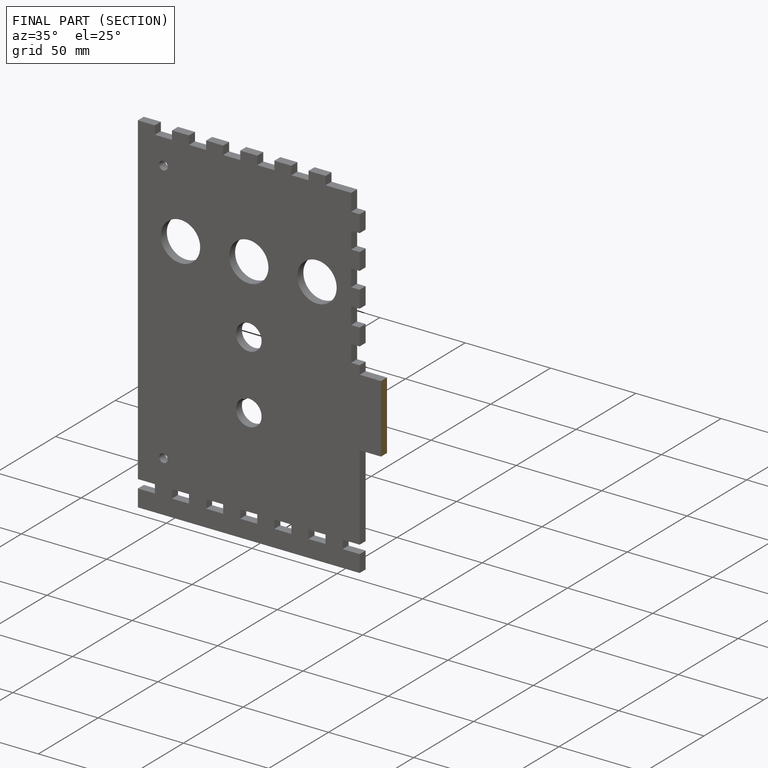
[diagram: finished part — half-section view (interior)]
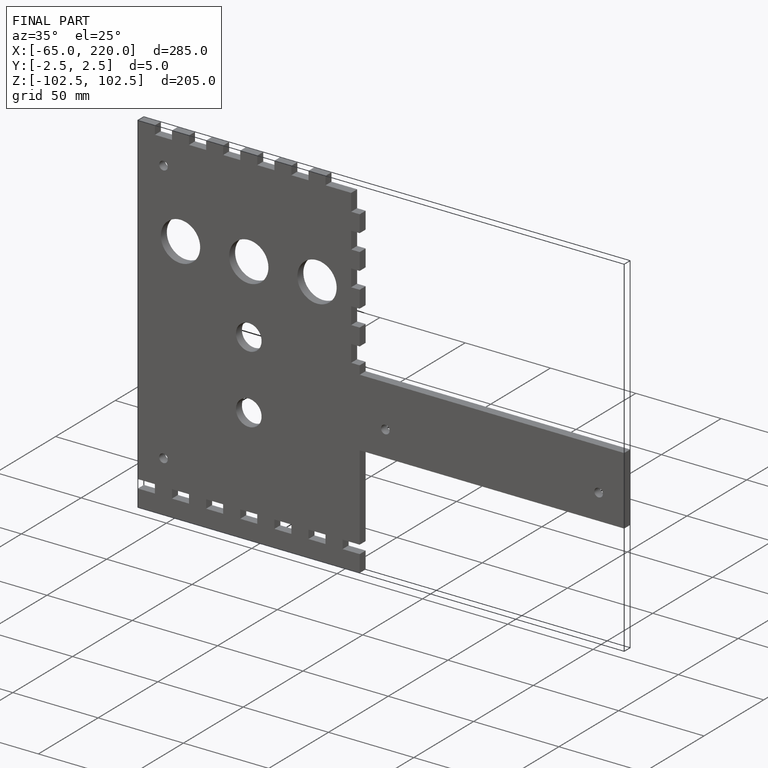
[diagram: finished part — iso view with bounding-box wireframe]
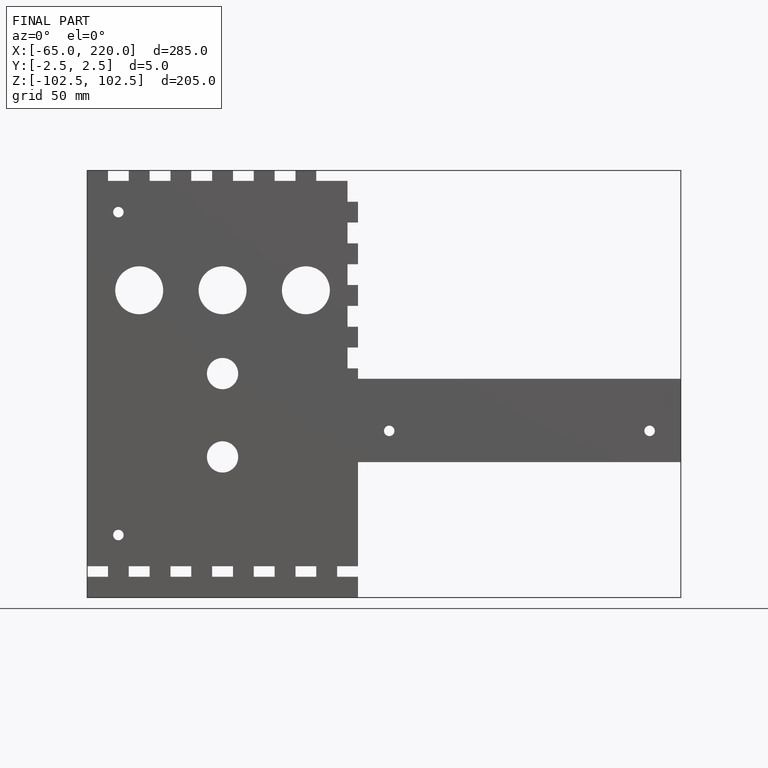
[diagram: finished part — front view with bounding-box wireframe]
